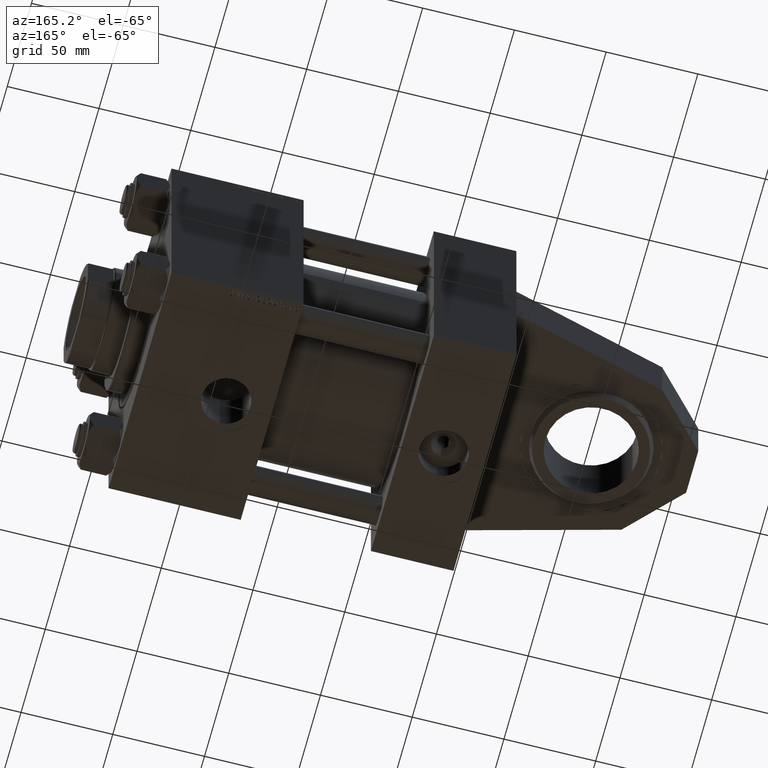
[diagram: clean part render]
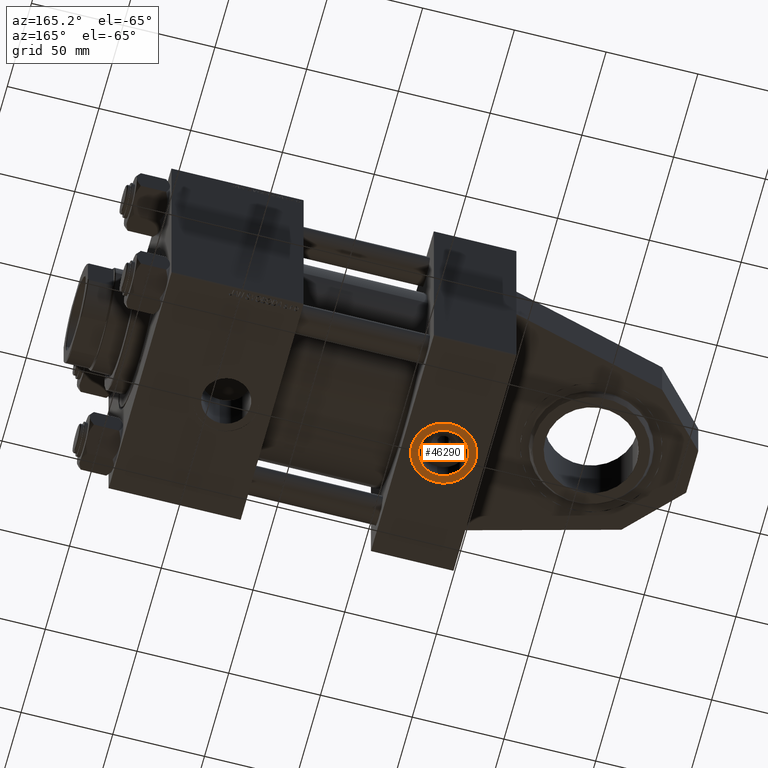
[diagram: same view with one face highlighted and labeled with its STEP entity id]
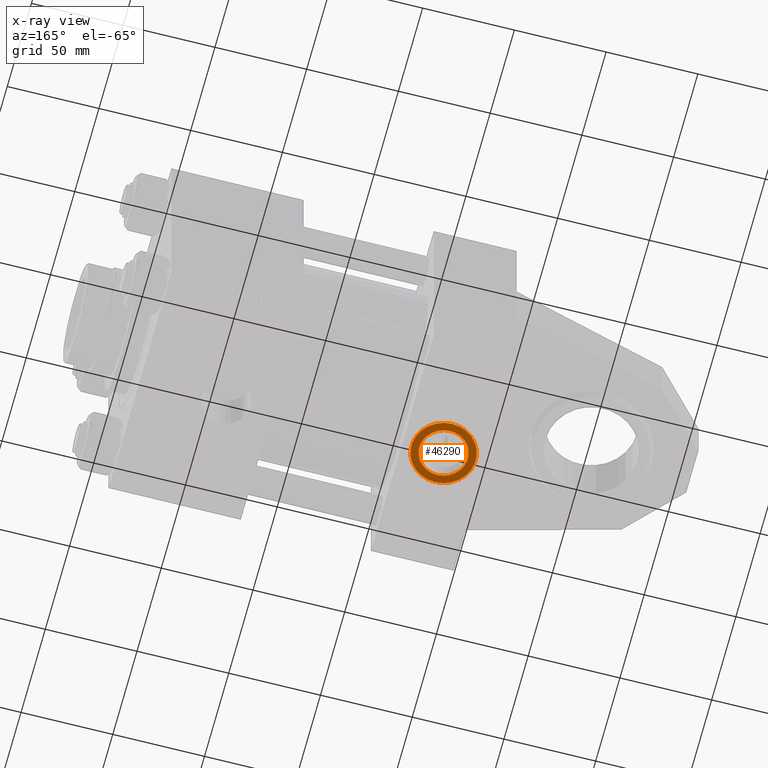
[diagram: x-ray of the same camera — body ghosted, the highlighted face saturated]
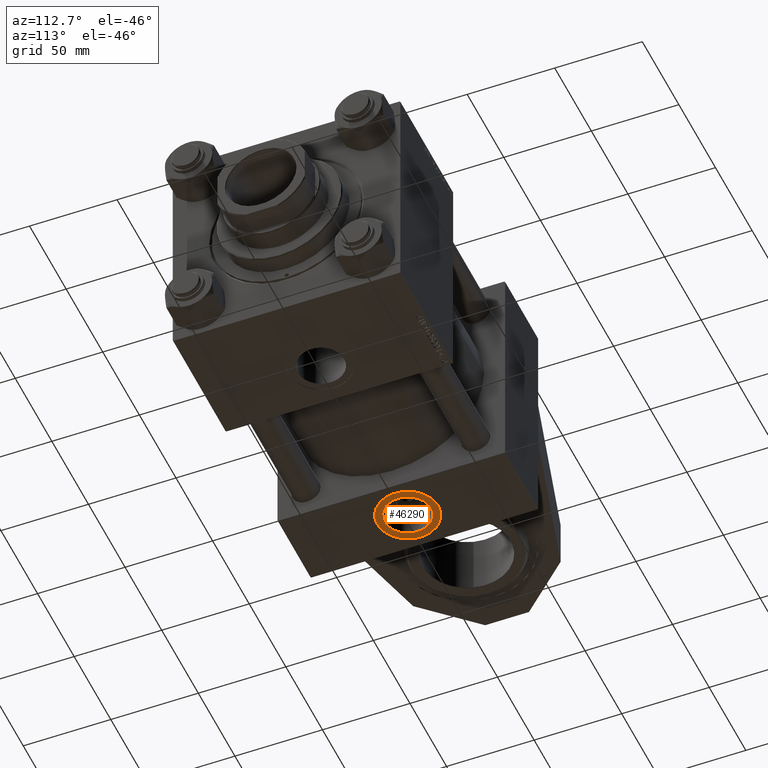
[diagram: same view with one face highlighted and labeled with its STEP entity id]
A machine part, auxiliary view. The second image highlights one B-rep face of the part: STEP entity #46290.
The next image is the same camera in x-ray: the body ghosted, the highlighted face saturated — about 0% of this face is hidden behind the body in this view.
A second angle (auxiliary view) of the same face is appended — the face is thin or edge-on in the first view.
In plain terms, the highlighted planar face has unit normal (0, 0, -1).
Its self-contained STEP definition (entity closure, byte-faithful):
#1285 = FACE_BOUND ( 'NONE', #29049, .T. ) ;
#1635 = EDGE_CURVE ( 'NONE', #19474, #14730, #25034, .T. ) ;
#2013 = AXIS2_PLACEMENT_3D ( 'NONE', #46048, #9790, #14054 ) ;
#4079 = CIRCLE ( 'NONE', #10881, 17.50000000000000000 ) ;
#4631 = CARTESIAN_POINT ( 'NONE',  ( 22.50000000000000000, -64.79999999999999716, -17.50000000000000000 ) ) ;
#8465 = EDGE_LOOP ( 'NONE', ( #29199, #47284 ) ) ;
#9308 = DIRECTION ( 'NONE',  ( 0.000000000000000000, 0.000000000000000000, -1.000000000000000000 ) ) ;
#9790 = DIRECTION ( 'NONE',  ( 0.000000000000000000, -1.000000000000000000, -8.673617379884036705E-17 ) ) ;
#10705 = EDGE_CURVE ( 'NONE', #14730, #19474, #4079, .T. ) ;
#10863 = CARTESIAN_POINT ( 'NONE',  ( 22.50000000000000000, -64.79999999999999716, 1.734723475976807403E-17 ) ) ;
#10881 = AXIS2_PLACEMENT_3D ( 'NONE', #10863, #43110, #35913 ) ;
#10975 = CIRCLE ( 'NONE', #41622, 13.22000000000000419 ) ;
#11277 = ORIENTED_EDGE ( 'NONE', *, *, #50476, .F. ) ;
#12246 = PLANE ( 'NONE',  #28870 ) ;
#12776 = CARTESIAN_POINT ( 'NONE',  ( 22.50000000000000000, -64.79999999999999716, 1.734723475976807403E-17 ) ) ;
#12782 = EDGE_CURVE ( 'NONE', #19711, #44661, #37797, .T. ) ;
#14054 = DIRECTION ( 'NONE',  ( 0.000000000000000000, 0.000000000000000000, -1.000000000000000000 ) ) ;
#14236 = DIRECTION ( 'NONE',  ( 0.000000000000000000, -1.000000000000000000, -8.673617379884036705E-17 ) ) ;
#14730 = VERTEX_POINT ( 'NONE', #50365 ) ;
#15536 = AXIS2_PLACEMENT_3D ( 'NONE', #22767, #14236, #43530 ) ;
#19104 = CARTESIAN_POINT ( 'NONE',  ( 22.50000000000000000, -64.79999999999999716, -13.22000000000000419 ) ) ;
#19474 = VERTEX_POINT ( 'NONE', #4631 ) ;
#19711 = VERTEX_POINT ( 'NONE', #28041 ) ;
#21561 = FACE_OUTER_BOUND ( 'NONE', #8465, .T. ) ;
#22767 = CARTESIAN_POINT ( 'NONE',  ( 22.50000000000000000, -64.79999999999999716, 1.734723475976770117E-17 ) ) ;
#24510 = DIRECTION ( 'NONE',  ( 0.000000000000000000, 8.673617379884036705E-17, -1.000000000000000000 ) ) ;
#25034 = CIRCLE ( 'NONE', #2013, 17.50000000000000000 ) ;
#25057 = DIRECTION ( 'NONE',  ( 0.000000000000000000, -1.000000000000000000, -8.673617379884036705E-17 ) ) ;
#28041 = CARTESIAN_POINT ( 'NONE',  ( 22.50000000000000000, -64.79999999999999716, 13.22000000000000419 ) ) ;
#28505 = DIRECTION ( 'NONE',  ( 0.000000000000000000, -1.000000000000000000, -8.673617379884036705E-17 ) ) ;
#28870 = AXIS2_PLACEMENT_3D ( 'NONE', #12776, #28505, #24510 ) ;
#29049 = EDGE_LOOP ( 'NONE', ( #11277, #49307 ) ) ;
#29199 = ORIENTED_EDGE ( 'NONE', *, *, #1635, .T. ) ;
#35913 = DIRECTION ( 'NONE',  ( 0.000000000000000000, 0.000000000000000000, -1.000000000000000000 ) ) ;
#37797 = CIRCLE ( 'NONE', #15536, 13.22000000000000419 ) ;
#40779 = CARTESIAN_POINT ( 'NONE',  ( 22.50000000000000000, -64.79999999999999716, 1.734723475976770117E-17 ) ) ;
#41622 = AXIS2_PLACEMENT_3D ( 'NONE', #40779, #25057, #9308 ) ;
#43110 = DIRECTION ( 'NONE',  ( 0.000000000000000000, -1.000000000000000000, -8.673617379884036705E-17 ) ) ;
#43530 = DIRECTION ( 'NONE',  ( 0.000000000000000000, 0.000000000000000000, -1.000000000000000000 ) ) ;
#44661 = VERTEX_POINT ( 'NONE', #19104 ) ;
#46048 = CARTESIAN_POINT ( 'NONE',  ( 22.50000000000000000, -64.79999999999999716, 1.734723475976807403E-17 ) ) ;
#46290 = ADVANCED_FACE ( 'NONE', ( #1285, #21561 ), #12246, .T. ) ;
#47284 = ORIENTED_EDGE ( 'NONE', *, *, #10705, .T. ) ;
#49307 = ORIENTED_EDGE ( 'NONE', *, *, #12782, .F. ) ;
#50365 = CARTESIAN_POINT ( 'NONE',  ( 22.50000000000000355, -64.79999999999999716, 17.50000000000000000 ) ) ;
#50476 = EDGE_CURVE ( 'NONE', #44661, #19711, #10975, .T. ) ;